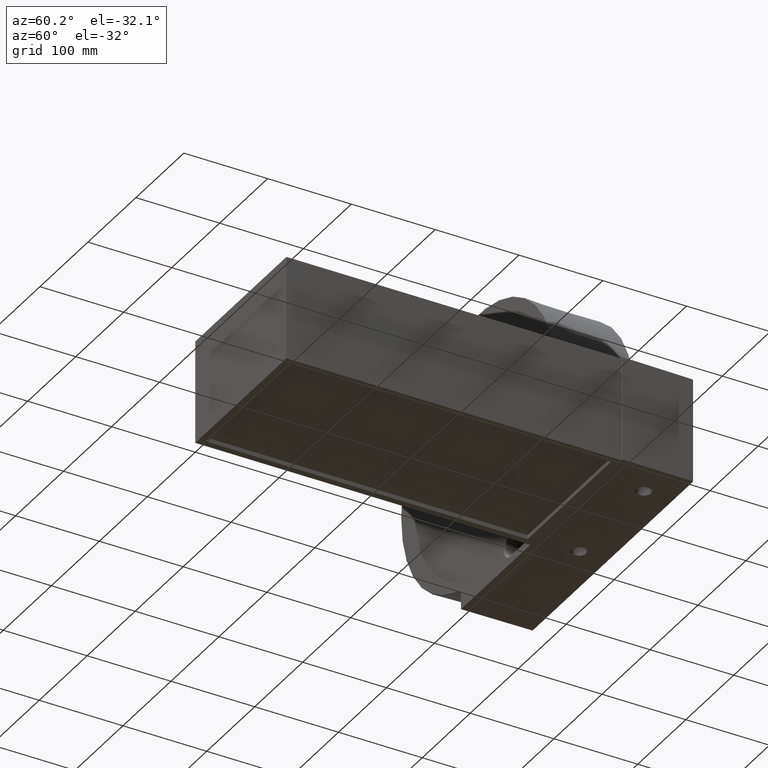
[diagram: clean part render]
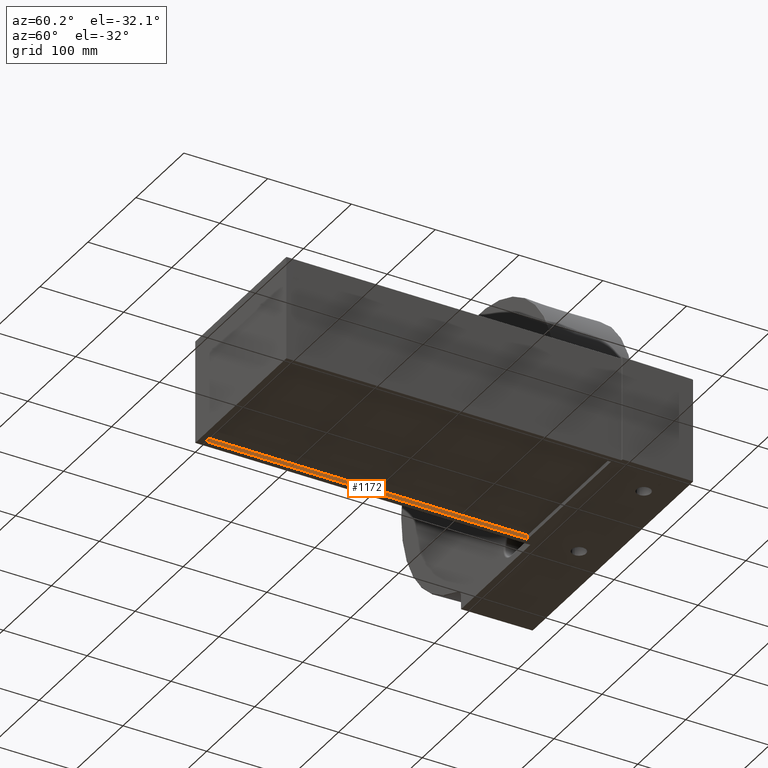
[diagram: same view with one face highlighted and labeled with its STEP entity id]
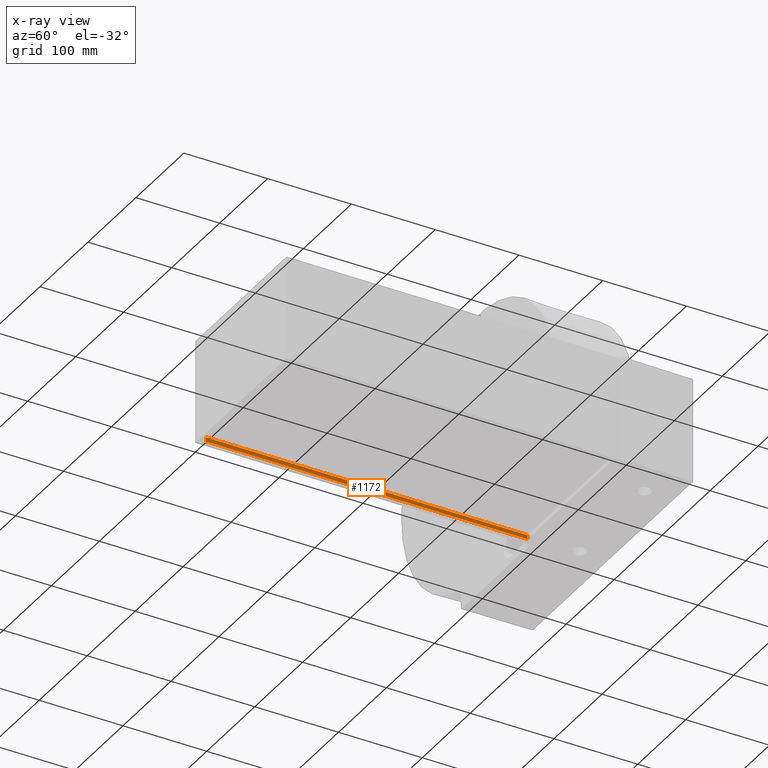
[diagram: x-ray of the same camera — body ghosted, the highlighted face saturated]
A machine part, auxiliary view. The second image highlights one B-rep face of the part: STEP entity #1172.
The next image is the same camera in x-ray: the body ghosted, the highlighted face saturated — about 0% of this face is hidden behind the body in this view.
In plain terms, the highlighted planar face has unit normal (-1, 0, 0).
Its self-contained STEP definition (entity closure, byte-faithful):
#314 = EDGE_LOOP ( 'NONE', ( #5064, #2983, #5005, #4300 ) ) ;
#425 = DIRECTION ( 'NONE',  ( -1.257674520083184897E-16, 5.296307347064897501E-32, -1.000000000000000000 ) ) ;
#718 = VECTOR ( 'NONE', #425, 1000.000000000000000 ) ;
#764 = CARTESIAN_POINT ( 'NONE',  ( 8.000000000000001776, 8.000000000000007105, -124.0000000000000284 ) ) ;
#816 = EDGE_CURVE ( 'NONE', #2052, #1179, #2185, .T. ) ;
#888 = DIRECTION ( 'NONE',  ( -1.000000000000000000, 1.232595164407830535E-32, 1.257674520083184897E-16 ) ) ;
#1006 = VERTEX_POINT ( 'NONE', #2874 ) ;
#1047 = DIRECTION ( 'NONE',  ( -1.848892746611746419E-32, 1.000000000000000000, -4.771491437219376826E-32 ) ) ;
#1151 = DIRECTION ( 'NONE',  ( 1.257674520083184897E-16, -5.296307347064897501E-32, 1.000000000000000000 ) ) ;
#1172 = ADVANCED_FACE ( 'NONE', ( #2124 ), #5617, .F. ) ;
#1179 = VERTEX_POINT ( 'NONE', #4356 ) ;
#1785 = EDGE_CURVE ( 'NONE', #2052, #1954, #4120, .T. ) ;
#1954 = VERTEX_POINT ( 'NONE', #3029 ) ;
#2052 = VERTEX_POINT ( 'NONE', #2628 ) ;
#2124 = FACE_OUTER_BOUND ( 'NONE', #314, .T. ) ;
#2185 = LINE ( 'NONE', #764, #718 ) ;
#2613 = CARTESIAN_POINT ( 'NONE',  ( 8.000000000000001776, 524.2577965360725329, -124.0000000000000284 ) ) ;
#2628 = CARTESIAN_POINT ( 'NONE',  ( 8.000000000000001776, 8.000000000000007105, -119.0000000000000000 ) ) ;
#2779 = LINE ( 'NONE', #5448, #5116 ) ;
#2874 = CARTESIAN_POINT ( 'NONE',  ( 8.000000000000001776, 392.0000000000000568, -124.0000000000000284 ) ) ;
#2983 = ORIENTED_EDGE ( 'NONE', *, *, #1785, .F. ) ;
#3029 = CARTESIAN_POINT ( 'NONE',  ( 8.000000000000001776, 392.0000000000000568, -119.0000000000000000 ) ) ;
#3384 = EDGE_CURVE ( 'NONE', #1006, #1954, #2779, .T. ) ;
#3449 = DIRECTION ( 'NONE',  ( 1.257674520083184897E-16, -5.296307347064897501E-32, 1.000000000000000000 ) ) ;
#3518 = EDGE_CURVE ( 'NONE', #1006, #1179, #3799, .T. ) ;
#3799 = LINE ( 'NONE', #5532, #4463 ) ;
#4120 = LINE ( 'NONE', #4977, #4483 ) ;
#4300 = ORIENTED_EDGE ( 'NONE', *, *, #3518, .F. ) ;
#4356 = CARTESIAN_POINT ( 'NONE',  ( 8.000000000000001776, 8.000000000000007105, -124.0000000000000284 ) ) ;
#4463 = VECTOR ( 'NONE', #4724, 1000.000000000000000 ) ;
#4483 = VECTOR ( 'NONE', #1047, 1000.000000000000000 ) ;
#4579 = AXIS2_PLACEMENT_3D ( 'NONE', #2613, #888, #3449 ) ;
#4724 = DIRECTION ( 'NONE',  ( 1.848892746611746419E-32, -1.000000000000000000, 4.771491437219376826E-32 ) ) ;
#4977 = CARTESIAN_POINT ( 'NONE',  ( 8.000000000000000000, 4.000000000000003553, -119.0000000000000000 ) ) ;
#5005 = ORIENTED_EDGE ( 'NONE', *, *, #816, .T. ) ;
#5064 = ORIENTED_EDGE ( 'NONE', *, *, #3384, .T. ) ;
#5116 = VECTOR ( 'NONE', #1151, 1000.000000000000000 ) ;
#5448 = CARTESIAN_POINT ( 'NONE',  ( 8.000000000000017764, 392.0000000000000568, 2.081668171172168513E-14 ) ) ;
#5532 = CARTESIAN_POINT ( 'NONE',  ( 8.000000000000001776, 524.2577965360725329, -124.0000000000000284 ) ) ;
#5617 = PLANE ( 'NONE',  #4579 ) ;